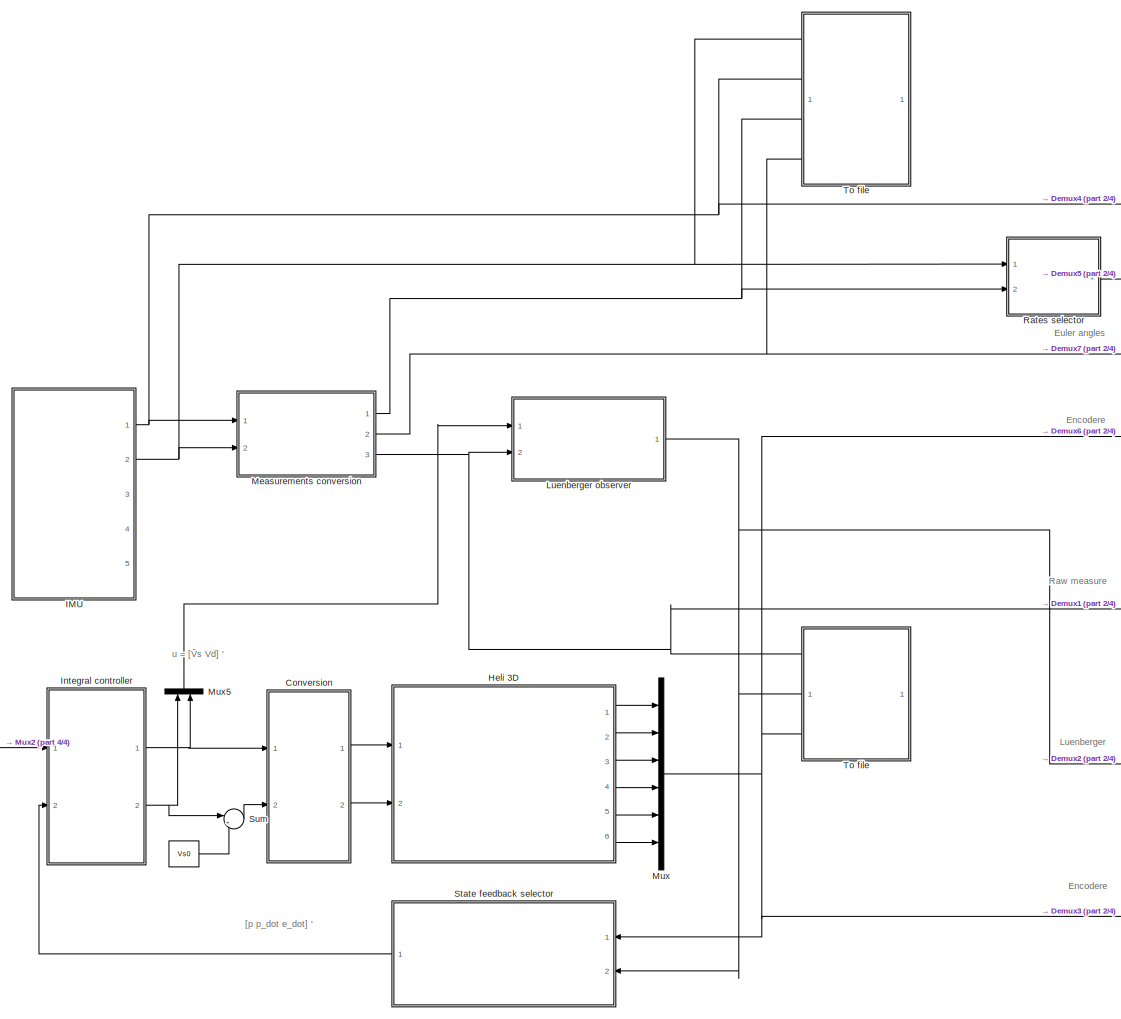
[diagram: root canvas - part 1/4, center side, full height]
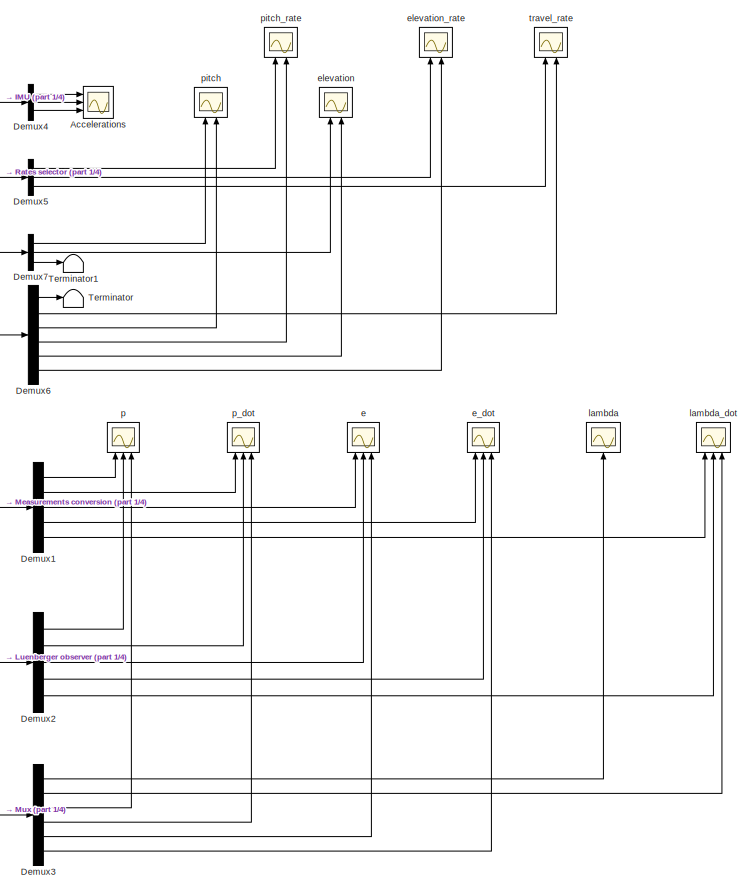
[diagram: root canvas - part 2/4, right side, full height]
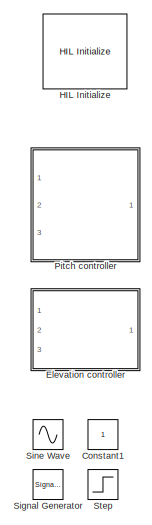
[diagram: root canvas - part 3/4, middle left region]
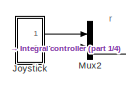
[diagram: root canvas - part 4/4, bottom left region]
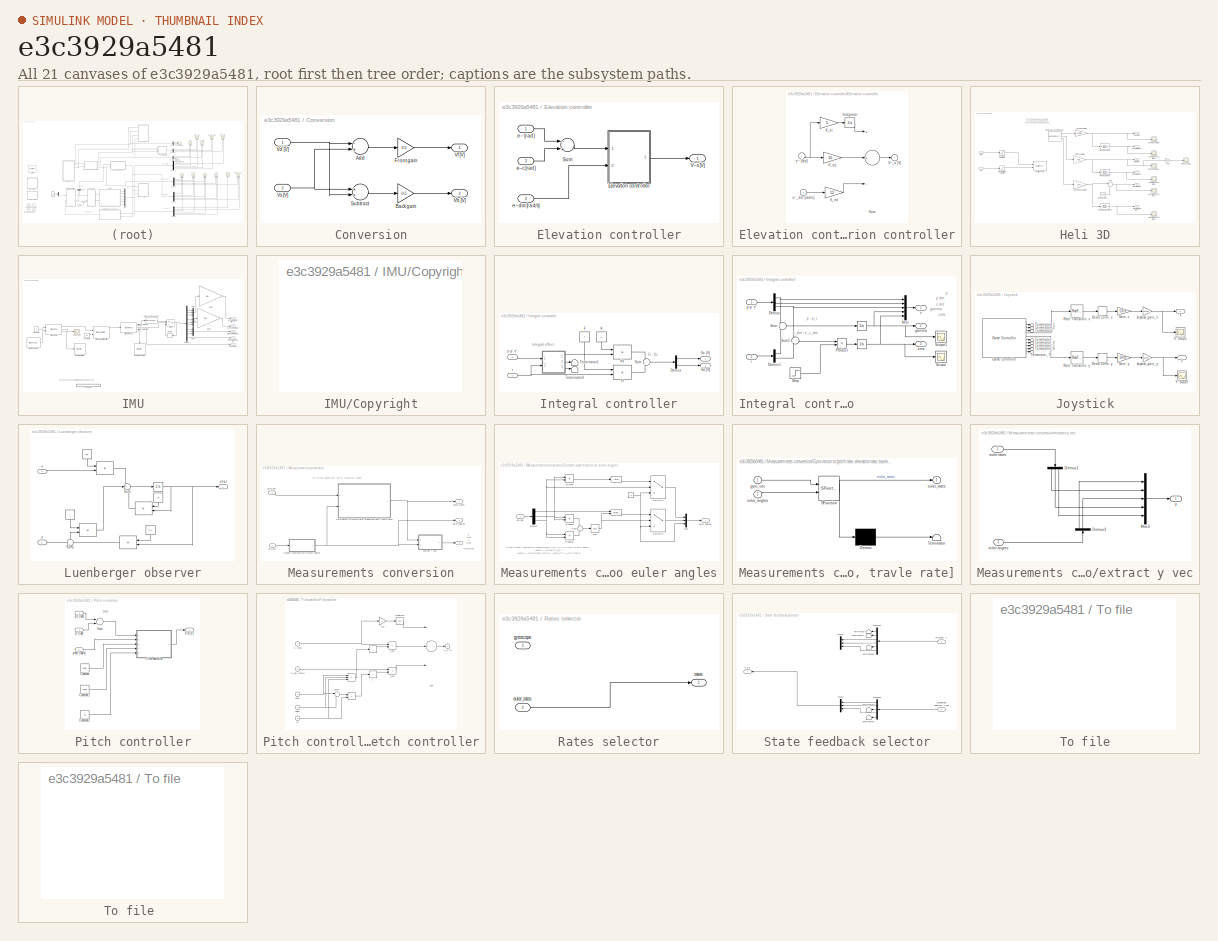
[diagram: thumbnail index - all 21 canvases of the model, root first then tree order]
MODEL slx_e3c3929a5481
KIND model
CONFIG AbsTol = auto
CONFIG EnableMultiTasking = on
CONFIG FixedStep = 0.002
CONFIG MaxStep = auto
CONFIG MinStep = auto
CONFIG PostLoadFcn = qc_set_target_type(getConfigSet(bdroot, 'QUARC Default Target Configuration'));
CONFIG RelTol = 1e-3
CONFIG SampleTimeConstraint = Unconstrained
CONFIG Solver = ode1
CONFIG SolverName = ode1
CONFIG StartTime = 0.0
CONFIG StopTime = inf
BLOCK [Constant]     
  Value = Vs0
BLOCK [ToFile]        
  Filename = x_enc
  Ports = [1]
BLOCK [ToFile]                     
  Filename = eul_rates
  Ports = [1]
BLOCK [ToFile]                                    
  Filename = eul_ang
  Ports = [1]
BLOCK [ToFile]                                     
  Filename = y_vec
  Ports = [1]
BLOCK [ToFile]                                       
  Filename = acc_raw
  Ports = [1]
BLOCK [ToFile]                                                               
  Filename = x_hat_L
  Ports = [1]
BLOCK [ToFile]                                                                    
  Filename = gyro_raw
  Ports = [1]
BLOCK [Scope] Accelerations
  Floating = off
  NumInputPorts = 3
  Ports = [3]
  ScopeSpecificationString = Simulink.scopes.TimeScopeBlockCfg('CurrentConfiguration', extmgr.ConfigurationSet(extmgr.Configuration('Core','General UI',true),extmgr.Configuration('Core','Source UI',true),extmgr.Configuration('Sources','WiredSimulink',true,'DataLoggingVariableName','ScopeData1'),extmgr.Configuration('Visuals','Time Domain',true),extmgr.Configuration('Tools','Plot Navigation',true),extmgr.Configuration('Tools',...<+40ch>
BLOCK [Constant] Constant1
BLOCK [SubSystem] Conversion
  Ports = [2, 2]
  RequestExecContextInheritance = off
BLOCK [Sum] Conversion/Add
  InputSameDT = off
  Inputs = -+
  OutDataTypeStr = Inherit: Inherit via internal rule
  Ports = [2, 1]
  SaturateOnIntegerOverflow = off
BLOCK [Gain] Conversion/Back gain
  Gain = 0.5
  OutDataTypeStr = Inherit: Inherit via internal rule
  ParamDataTypeStr = Inherit: Inherit via internal rule
  SaturateOnIntegerOverflow = off
BLOCK [Gain] Conversion/Front gain
  Gain = 0.5
  OutDataTypeStr = Inherit: Inherit via internal rule
  ParamDataTypeStr = Inherit: Inherit via internal rule
  SaturateOnIntegerOverflow = off
BLOCK [Sum] Conversion/Subtract
  InputSameDT = off
  OutDataTypeStr = Inherit: Inherit via internal rule
  Ports = [2, 1]
  SaturateOnIntegerOverflow = off
BLOCK [Outport] Conversion/Vb [V]
  IconDisplay = Port number
  Port = 2
BLOCK [Inport] Conversion/Vd [V]
  IconDisplay = Port number
BLOCK [Outport] Conversion/Vf [V]
  IconDisplay = Port number
BLOCK [Inport] Conversion/Vs [V]
  IconDisplay = Port number
  Port = 2
BLOCK [Demux] Demux1
  DisplayOption = bar
  Outputs = 5
  Ports = [1, 5]
BLOCK [Demux] Demux2
  DisplayOption = bar
  Outputs = 5
  Ports = [1, 5]
BLOCK [Demux] Demux3
  DisplayOption = bar
  Outputs = 6
  Ports = [1, 6]
BLOCK [Demux] Demux4
  DisplayOption = bar
  Outputs = 3
  Ports = [1, 3]
BLOCK [Demux] Demux5
  DisplayOption = bar
  Outputs = 3
  Ports = [1, 3]
BLOCK [Demux] Demux6
  DisplayOption = bar
  Outputs = 6
  Ports = [1, 6]
BLOCK [Demux] Demux7
  DisplayOption = bar
  Outputs = 3
  Ports = [1, 3]
BLOCK [SubSystem] Elevation controller
  Ports = [3, 1]
  RequestExecContextInheritance = off
BLOCK [SubSystem] Elevation controller/Elevation controller
  Ports = [2, 1]
  RequestExecContextInheritance = off
BLOCK [Integrator] Elevation controller/Elevation controller/Integrator
  LimitOutput = on
  Ports = [1, 1]
BLOCK [Gain] Elevation controller/Elevation controller/K_ed
  Gain = 12
BLOCK [Gain] Elevation controller/Elevation controller/K_ei
  Gain = 5
BLOCK [Gain] Elevation controller/Elevation controller/K_ep
  Gain = 15
BLOCK [Sum] Elevation controller/Elevation controller/Sum
  Inputs = ++-
  Ports = [3, 1]
BLOCK [Outport] Elevation controller/Elevation controller/V~_s [V]
  IconDisplay = Port number
  InitialOutput = 0
BLOCK [Inport] Elevation controller/Elevation controller/e~ [rad]
  IconDisplay = Port number
BLOCK [Inport] Elevation controller/Elevation controller/e~_dot [rad//s]
  IconDisplay = Port number
  Port = 2
BLOCK [Sum] Elevation controller/Sum
  Inputs = -+
  Ports = [2, 1]
BLOCK [Outport] Elevation controller/V~s [V]
  IconDisplay = Port number
  InitialOutput = 0
BLOCK [Inport] Elevation controller/e~ [rad]
  IconDisplay = Port number
BLOCK [Inport] Elevation controller/e~c [rad]
  IconDisplay = Port number
  Port = 3
BLOCK [Inport] Elevation controller/e~dot [rad//s]
  IconDisplay = Port number
  Port = 2
BLOCK [Reference] HIL Initialize  REF=quarc_library/Data Acquisition/Generic/Configuration/HIL Initialize
  AttributesFormatString = %<object_name> (%<board_type>-%<board_number>)
  Ports = []
  Priority = -99
  SourceBlock = quarc_library/Data Acquisition/Generic/Configuration/HIL Initialize
  SourceType = HIL Initialize
  UserDataPersistent = on
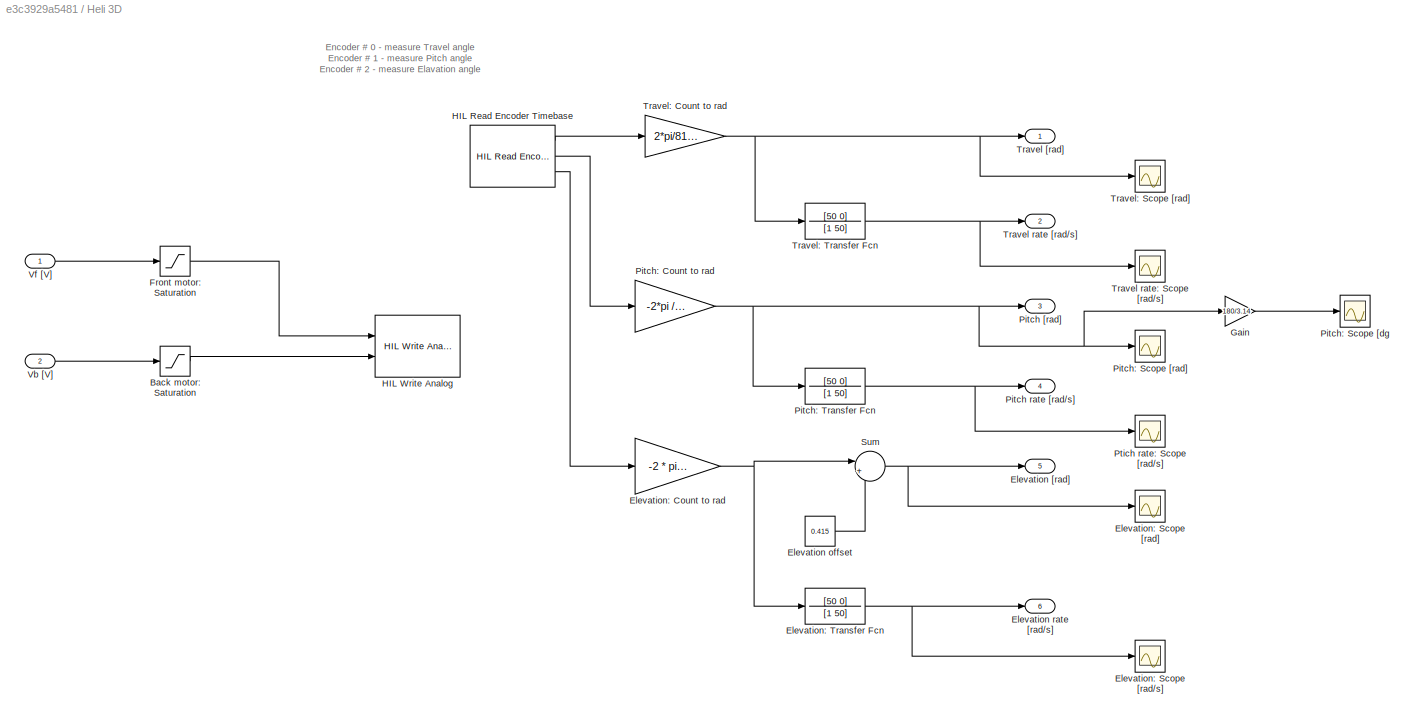
BLOCK [SubSystem] Heli 3D
  Ports = [2, 6]
  RequestExecContextInheritance = off
BLOCK [Saturate] Heli 3D/Back motor: Saturation
  InputPortMap = u0
  LowerLimit = -5
  Ports = [1, 1]
  UpperLimit = 5
BLOCK [Outport] Heli 3D/Elevation [rad]
  IconDisplay = Port number
  Port = 5
BLOCK [Constant] Heli 3D/Elevation offset
  Value = 0.415
BLOCK [Outport] Heli 3D/Elevation rate [rad//s]
  IconDisplay = Port number
  Port = 6
BLOCK [Gain] Heli 3D/Elevation: Count to rad
  Gain = -2 * pi /4096
  OutDataTypeStr = Inherit: Inherit via internal rule
  ParamDataTypeStr = Inherit: Inherit via internal rule
  SaturateOnIntegerOverflow = off
BLOCK [Scope] Heli 3D/Elevation: Scope [rad//s]
  Floating = off
  NumInputPorts = 1
  Ports = [1]
  ScopeSpecificationString = Simulink.scopes.TimeScopeBlockCfg('CurrentConfiguration', extmgr.ConfigurationSet(extmgr.Configuration('Core','General UI',true),extmgr.Configuration('Core','Source UI',true),extmgr.Configuration('Sources','WiredSimulink',true,'DataLoggingVariableName','ScopeData13','DataLoggingSaveFormat','StructureWithTime','DataLoggingLimitDataPoints',true,'DataLoggingDecimation','1','DataLoggingDecimateData',t...<+1676ch>
BLOCK [Scope] Heli 3D/Elevation: Scope [rad]
  Floating = off
  NumInputPorts = 1
  Ports = [1]
  ScopeSpecificationString = Simulink.scopes.TimeScopeBlockCfg('CurrentConfiguration', extmgr.ConfigurationSet(extmgr.Configuration('Core','General UI',true),extmgr.Configuration('Core','Source UI',true),extmgr.Configuration('Sources','WiredSimulink',true,'DataLoggingVariableName','ScopeData12','DataLoggingSaveFormat','StructureWithTime','DataLoggingLimitDataPoints',true,'DataLoggingDecimation','1','DataLoggingDecimateData',t...<+1698ch>
BLOCK [TransferFcn] Heli 3D/Elevation: Transfer Fcn
  Denominator = [1 50]
  Numerator = [50 0]
BLOCK [Saturate] Heli 3D/Front motor: Saturation
  InputPortMap = u0
  LowerLimit = -5
  Ports = [1, 1]
  UpperLimit = 5
BLOCK [Gain] Heli 3D/Gain
  Gain = 180/3.14
  OutDataTypeStr = Inherit: Inherit via internal rule
  ParamDataTypeStr = Inherit: Inherit via internal rule
  SaturateOnIntegerOverflow = off
BLOCK [Reference] Heli 3D/HIL Read Encoder Timebase  REF=quarc_library/Data Acquisition/Generic/Timebases/HIL Read Encoder
Timebase
  AttributesFormatString = (%<object_name>)
  Ports = [0, 3]
  SourceBlock = quarc_library/Data Acquisition/Generic/Timebases/HIL Read Encoder\nTimebase
  SourceType = HIL Read Encoder Timebase
  UserDataPersistent = on
BLOCK [Reference] Heli 3D/HIL Write Analog  REF=quarc_library/Data Acquisition/Generic/Immediate I//O/HIL Write Analog
  AttributesFormatString = (%<object_name>)
  Ports = [2]
  SourceBlock = quarc_library/Data Acquisition/Generic/Immediate I//O/HIL Write Analog
  SourceType = HIL Write Analog
  UserDataPersistent = on
BLOCK [Outport] Heli 3D/Pitch [rad]
  IconDisplay = Port number
  Port = 3
BLOCK [Outport] Heli 3D/Pitch rate [rad//s]
  IconDisplay = Port number
  Port = 4
BLOCK [Gain] Heli 3D/Pitch: Count to rad
  Gain = -2*pi /4096
  OutDataTypeStr = Inherit: Inherit via internal rule
  ParamDataTypeStr = Inherit: Inherit via internal rule
  SaturateOnIntegerOverflow = off
BLOCK [Scope] Heli 3D/Pitch: Scope [dg
  Floating = off
  NumInputPorts = 1
  Ports = [1]
  ScopeSpecificationString = Simulink.scopes.TimeScopeBlockCfg('CurrentConfiguration', extmgr.ConfigurationSet(extmgr.Configuration('Core','General UI',true),extmgr.Configuration('Core','Source UI',true),extmgr.Configuration('Sources','WiredSimulink',true,'DataLoggingVariableName','ScopeData1','DataLoggingSaveFormat','StructureWithTime','DataLoggingLimitDataPoints',true,'DataLoggingDecimation','1','DataLoggingDecimateData',tr...<+1704ch>
BLOCK [Scope] Heli 3D/Pitch: Scope [rad]
  Floating = off
  NumInputPorts = 1
  Ports = [1]
  ScopeSpecificationString = Simulink.scopes.TimeScopeBlockCfg('CurrentConfiguration', extmgr.ConfigurationSet(extmgr.Configuration('Core','General UI',true),extmgr.Configuration('Core','Source UI',true),extmgr.Configuration('Sources','WiredSimulink',true,'DataLoggingVariableName','ScopeData10','DataLoggingSaveFormat','StructureWithTime','DataLoggingLimitDataPoints',true,'DataLoggingDecimation','1','DataLoggingDecimateData',t...<+1711ch>
BLOCK [TransferFcn] Heli 3D/Pitch: Transfer Fcn
  Denominator = [1 50]
  Numerator = [50 0]
BLOCK [Scope] Heli 3D/Ptich rate: Scope [rad//s]
  Floating = off
  NumInputPorts = 1
  Ports = [1]
  ScopeSpecificationString = Simulink.scopes.TimeScopeBlockCfg('CurrentConfiguration', extmgr.ConfigurationSet(extmgr.Configuration('Core','General UI',true),extmgr.Configuration('Core','Source UI',true),extmgr.Configuration('Sources','WiredSimulink',true,'DataLoggingVariableName','ScopeData11','DataLoggingSaveFormat','StructureWithTime','DataLoggingLimitDataPoints',true,'DataLoggingDecimation','1','DataLoggingDecimateData',t...<+1671ch>
BLOCK [Sum] Heli 3D/Sum
  IconShape = round
  InputSameDT = off
  Inputs = |+-
  OutDataTypeStr = Inherit: Inherit via internal rule
  Ports = [2, 1]
  SaturateOnIntegerOverflow = off
BLOCK [Outport] Heli 3D/Travel [rad]
  IconDisplay = Port number
BLOCK [Outport] Heli 3D/Travel rate [rad//s]
  IconDisplay = Port number
  Port = 2
BLOCK [Scope] Heli 3D/Travel rate: Scope [rad//s]
  Floating = off
  NumInputPorts = 1
  Ports = [1]
  ScopeSpecificationString = Simulink.scopes.TimeScopeBlockCfg('CurrentConfiguration', extmgr.ConfigurationSet(extmgr.Configuration('Core','General UI',true),extmgr.Configuration('Core','Source UI',true),extmgr.Configuration('Sources','WiredSimulink',true,'DataLoggingVariableName','ScopeData9','DataLoggingSaveFormat','StructureWithTime','DataLoggingLimitDataPoints',true,'DataLoggingDecimation','1','DataLoggingDecimateData',tr...<+1714ch>
BLOCK [Gain] Heli 3D/Travel: Count to rad
  Gain = 2*pi/8192
  OutDataTypeStr = Inherit: Inherit via internal rule
  ParamDataTypeStr = Inherit: Inherit via internal rule
  SaturateOnIntegerOverflow = off
BLOCK [Scope] Heli 3D/Travel: Scope [rad]
  Floating = off
  NumInputPorts = 1
  Ports = [1]
  ScopeSpecificationString = Simulink.scopes.TimeScopeBlockCfg('CurrentConfiguration', extmgr.ConfigurationSet(extmgr.Configuration('Core','General UI',true),extmgr.Configuration('Core','Source UI',true),extmgr.Configuration('Sources','WiredSimulink',true,'DataLoggingVariableName','ScopeData8','DataLoggingSaveFormat','StructureWithTime','DataLoggingLimitDataPoints',true,'DataLoggingDecimation','1','DataLoggingDecimateData',tr...<+1714ch>
BLOCK [TransferFcn] Heli 3D/Travel: Transfer Fcn
  Denominator = [1 50]
  Numerator = [50 0]
BLOCK [Inport] Heli 3D/Vb [V]
  IconDisplay = Port number
  Port = 2
BLOCK [Inport] Heli 3D/Vf [V]
  IconDisplay = Port number
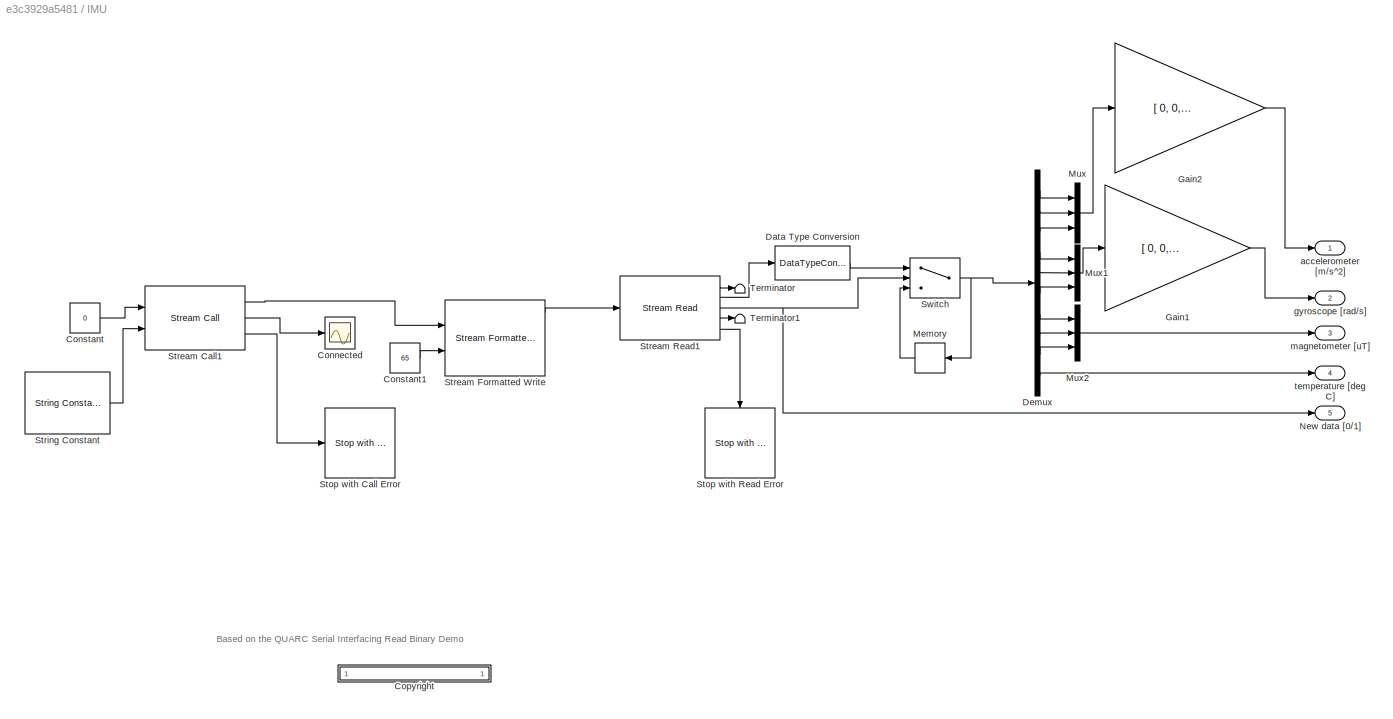
BLOCK [SubSystem] IMU
  Ports = [0, 5]
  RequestExecContextInheritance = off
BLOCK [Scope] IMU/Connected
  Floating = off
  NumInputPorts = 1
  Ports = [1]
  ScopeSpecificationString = Simulink.scopes.TimeScopeBlockCfg('CurrentConfiguration', extmgr.ConfigurationSet(extmgr.Configuration('Core','General UI',true),extmgr.Configuration('Core','Source UI',true),extmgr.Configuration('Sources','WiredSimulink',true,'DataLoggingSaveFormat','StructureWithTime','DataLoggingLimitDataPoints',true,'DataLoggingDecimation','1','DataLoggingDecimateData',true,'DataLoggingVariableName','ScopeData...<+909ch>
BLOCK [Constant] IMU/Constant
  Value = 0
BLOCK [Constant] IMU/Constant1
  Value = 65
BLOCK [SubSystem] IMU/<copyright redacted>
  OpenFcn = web('http://www.quanser.com/');
  Permissions = NoReadOrWrite
  PermitHierarchicalResolution = None
  Ports = []
  RequestExecContextInheritance = off
BLOCK [DataTypeConversion] IMU/Data Type Conversion
  OutDataTypeStr = double
  RndMeth = Floor
  SaturateOnIntegerOverflow = off
BLOCK [Demux] IMU/Demux
  DisplayOption = bar
  Outputs = 10
  Ports = [1, 10]
BLOCK [Gain] IMU/Gain1
  Gain = [ 0, 0, 1; 0, 1, 0; -1, 0, 0]
  Multiplication = Matrix(K*u) (u vector)
  OutDataTypeStr = Inherit: Inherit via internal rule
  ParamDataTypeStr = Inherit: Inherit via internal rule
  SaturateOnIntegerOverflow = off
BLOCK [Gain] IMU/Gain2
  Gain = [ 0, 0, 1; 0, 1, 0; -1, 0, 0]
  Multiplication = Matrix(K*u) (u vector)
  OutDataTypeStr = Inherit: Inherit via internal rule
  ParamDataTypeStr = Inherit: Inherit via internal rule
  SaturateOnIntegerOverflow = off
BLOCK [Memory] IMU/Memory
  InitialCondition = [0 0 0 0 0 0 0 0 0 0]
BLOCK [Mux] IMU/Mux
  DisplayOption = bar
  Inputs = 3
  Ports = [3, 1]
BLOCK [Mux] IMU/Mux1
  DisplayOption = bar
  Inputs = 3
  Ports = [3, 1]
BLOCK [Mux] IMU/Mux2
  DisplayOption = bar
  Inputs = 3
  Ports = [3, 1]
BLOCK [Outport] IMU/New data [0//1]
  IconDisplay = Port number
  Port = 5
BLOCK [Reference] IMU/Stop with Call Error  REF=quarc_library/Sinks/Error Handling/Stop with Error
  Ports = [1]
  SourceBlock = quarc_library/Sinks/Error Handling/Stop with Error
  SourceType = Stop with Error
BLOCK [Reference] IMU/Stop with Read Error  REF=quarc_library/Sinks/Error Handling/Stop with Error
  Ports = [1]
  SourceBlock = quarc_library/Sinks/Error Handling/Stop with Error
  SourceType = Stop with Error
BLOCK [Reference] IMU/Stream Call1  REF=quarc_library/Communications/Intermediate/Stream Call
  Ports = [2, 3]
  SourceBlock = quarc_library/Communications/Intermediate/Stream Call
  SourceType = Stream Call
BLOCK [Reference] IMU/Stream Formatted Write  REF=quarc_library/Communications/Intermediate/Stream Formatted
Write
  Ports = [2, 5]
  SourceBlock = quarc_library/Communications/Intermediate/Stream Formatted\nWrite
  SourceType = Stream Formatted Write
BLOCK [Reference] IMU/Stream Read1  REF=quarc_library/Communications/Intermediate/Stream Read
  Ports = [1, 5]
  SourceBlock = quarc_library/Communications/Intermediate/Stream Read
  SourceType = Stream Read
BLOCK [Reference] IMU/String Constant  REF=quarc_library/Strings/String Constant
  AttributesFormatString = "serial://IMU:10?baud=115200,word=8,parity=none,stop=1"
  Ports = [0, 1]
  SourceBlock = quarc_library/Strings/String Constant
  SourceType = String Constant
BLOCK [Switch] IMU/Switch
  Criteria = u2 > Threshold
  InputSameDT = off
  SaturateOnIntegerOverflow = off
BLOCK [Terminator] IMU/Terminator
BLOCK [Terminator] IMU/Terminator1
BLOCK [Outport] IMU/accelerometer [m//s^2]
  IconDisplay = Port number
BLOCK [Outport] IMU/gyroscope [rad//s]
  IconDisplay = Port number
  Port = 2
BLOCK [Outport] IMU/magnetometer [uT]
  IconDisplay = Port number
  Port = 3
BLOCK [Outport] IMU/temperature [deg C]
  IconDisplay = Port number
  Port = 4
BLOCK [SubSystem] Integral controller
  Ports = [2, 2]
  RequestExecContextInheritance = off
BLOCK [SubSystem] Integral controller/                         
  Ports = [2, 3]
  RequestExecContextInheritance = off
BLOCK [Integrator] Integral controller/                         /  
  Ports = [1, 1]
BLOCK [Integrator] Integral controller/                         /   
  Ports = [1, 1]
BLOCK [Demux] Integral controller/                         /Demux
  DisplayOption = bar
  Outputs = 3
  Ports = [1, 3]
BLOCK [Demux] Integral controller/                         /Demux1
  DisplayOption = bar
  Outputs = 2
  Ports = [1, 2]
BLOCK [Mux] Integral controller/                         /Mux
  DisplayOption = bar
  Inputs = 5
  Ports = [5, 1]
BLOCK [Product] Integral controller/                         /Product
  InputSameDT = off
  OutDataTypeStr = Inherit: Inherit via internal rule
  Ports = [2, 1]
  RndMeth = Floor
  SaturateOnIntegerOverflow = off
BLOCK [Scope] Integral controller/                         /Scope
  Floating = off
  NumInputPorts = 1
  Ports = [1]
  ScopeSpecificationString = Simulink.scopes.TimeScopeBlockCfg('CurrentConfiguration', extmgr.ConfigurationSet(extmgr.Configuration('Core','General UI',true),extmgr.Configuration('Core','Source UI',true),extmgr.Configuration('Sources','WiredSimulink',true,'DataLoggingVariableName','ScopeData1'),extmgr.Configuration('Visuals','Time Domain',true,'SerializedDisplays',{struct('MinYLimReal','-0.47093','MaxYLimReal','0.0813','YLabe...<+1391ch>
BLOCK [Scope] Integral controller/                         /Scope1
  Floating = off
  NumInputPorts = 1
  Ports = [1]
  ScopeSpecificationString = Simulink.scopes.TimeScopeBlockCfg('CurrentConfiguration', extmgr.ConfigurationSet(extmgr.Configuration('Core','General UI',true),extmgr.Configuration('Core','Source UI',true),extmgr.Configuration('Sources','WiredSimulink',true,'DataLoggingVariableName','ScopeData1'),extmgr.Configuration('Visuals','Time Domain',true,'SerializedDisplays',{struct('MinYLimReal','-0.47093','MaxYLimReal','0.0813','YLabe...<+1391ch>
BLOCK [Step] Integral controller/                         /Step
  SampleTime = 0
  Time = 5
BLOCK [Sum] Integral controller/                         /Sum
  IconShape = round
  InputSameDT = off
  Inputs = +|-
  OutDataTypeStr = Inherit: Inherit via internal rule
  Ports = [2, 1]
  SaturateOnIntegerOverflow = off
BLOCK [Sum] Integral controller/                         /Sum1
  IconShape = round
  InputSameDT = off
  Inputs = +|-
  OutDataTypeStr = Inherit: Inherit via internal rule
  Ports = [2, 1]
  SaturateOnIntegerOverflow = off
BLOCK [Outport] Integral controller/                         /gamma
  IconDisplay = Port number
  Port = 2
BLOCK [Inport] Integral controller/                         /p p' e'
  IconDisplay = Port number
BLOCK [Inport] Integral controller/                         /r
  IconDisplay = Port number
  Port = 2
BLOCK [Outport] Integral controller/                         /x
  IconDisplay = Port number
BLOCK [Outport] Integral controller/                         /zeta
  IconDisplay = Port number
  Port = 3
BLOCK [Demux] Integral controller/Demux
  DisplayOption = bar
  Outputs = 2
  Ports = [1, 2]
BLOCK [Constant] Integral controller/F
  Value = F
  VectorParams1D = off
BLOCK [Product] Integral controller/Fr
  InputSameDT = off
  Multiplication = Matrix(*)
  OutDataTypeStr = Inherit: Inherit via internal rule
  Ports = [2, 1]
  RndMeth = Floor
  SaturateOnIntegerOverflow = off
BLOCK [Constant] Integral controller/K
  Value = K
  VectorParams1D = off
BLOCK [Product] Integral controller/Kx
  InputSameDT = off
  Multiplication = Matrix(*)
  Ports = [2, 1]
  RndMeth = Nearest
  SaturateOnIntegerOverflow = off
BLOCK [Sum] Integral controller/Sum
  IconShape = round
  InputSameDT = off
  Inputs = -|+
  OutDataTypeStr = Inherit: Inherit via internal rule
  Ports = [2, 1]
  SaturateOnIntegerOverflow = off
BLOCK [Terminator] Integral controller/Terminator1
BLOCK [Terminator] Integral controller/Terminator2
BLOCK [Inport] Integral controller/p p' e'
  IconDisplay = Port number
  Port = 2
BLOCK [Inport] Integral controller/r
  IconDisplay = Port number
BLOCK [Outport] Integral controller/Ṽd [V]
  IconDisplay = Port number
  InitialOutput = 0
BLOCK [Outport] Integral controller/Ṽs [V]
  IconDisplay = Port number
  InitialOutput = 0
  Port = 2
BLOCK [SubSystem] Joystick
  Ports = [0, 2]
  RequestExecContextInheritance = off
BLOCK [DeadZone] Joystick/Dead Zone: x
  LowerValue = -0.1
  UpperValue = 0.1
BLOCK [DeadZone] Joystick/Dead Zone: y
  LowerValue = -0.1
  UpperValue = 0.1
BLOCK [Gain] Joystick/Gain: x
  Gain = 10/9
  OutDataTypeStr = Inherit: Inherit via internal rule
  ParamDataTypeStr = Inherit: Inherit via internal rule
  SaturateOnIntegerOverflow = off
BLOCK [Gain] Joystick/Gain: y
  Gain = 10/9
  OutDataTypeStr = Inherit: Inherit via internal rule
  ParamDataTypeStr = Inherit: Inherit via internal rule
  SaturateOnIntegerOverflow = off
BLOCK [Reference] Joystick/Game Controller  REF=quarc_library/Devices/Peripherals/Target/Game Controller
  Ports = [0, 10]
  SourceBlock = quarc_library/Devices/Peripherals/Target/Game Controller
  SourceType = Game Controller
BLOCK [Gain] Joystick/Joystick_gain_x
  Gain = Joystick_gain_x
  OutDataTypeStr = Inherit: Inherit via internal rule
  ParamDataTypeStr = Inherit: Inherit via internal rule
  SaturateOnIntegerOverflow = off
BLOCK [Gain] Joystick/Joystick_gain_y
  Gain = Joystick_gain_y
  OutDataTypeStr = Inherit: Inherit via internal rule
  ParamDataTypeStr = Inherit: Inherit via internal rule
  SaturateOnIntegerOverflow = off
BLOCK [RateTransition] Joystick/Rate Transition: x
BLOCK [RateTransition] Joystick/Rate Transition: y
BLOCK [Terminator] Joystick/Terminator
BLOCK [Terminator] Joystick/Terminator1
BLOCK [Terminator] Joystick/Terminator_1
BLOCK [Terminator] Joystick/Terminator_2
BLOCK [Terminator] Joystick/Terminator_4
BLOCK [Terminator] Joystick/Terminator_5
BLOCK [Terminator] Joystick/Terminator_6
BLOCK [Terminator] Joystick/Terminator_7
BLOCK [Outport] Joystick/X
  IconDisplay = Port number
BLOCK [Scope] Joystick/X: Scope
  Floating = off
  NumInputPorts = 1
  Ports = [1]
  ScopeSpecificationString = Simulink.scopes.TimeScopeBlockCfg('CurrentConfiguration', extmgr.ConfigurationSet(extmgr.Configuration('Core','General UI',true),extmgr.Configuration('Core','Source UI',true),extmgr.Configuration('Sources','WiredSimulink',true,'DataLoggingVariableName','ScopeData7','DataLoggingSaveFormat','StructureWithTime','DataLoggingLimitDataPoints',true,'DataLoggingDecimation','1','DataLoggingDecimateData',tr...<+1628ch>
BLOCK [Outport] Joystick/Y
  IconDisplay = Port number
  Port = 2
BLOCK [Scope] Joystick/Y: Scope
  Floating = off
  NumInputPorts = 1
  Ports = [1]
  ScopeSpecificationString = Simulink.scopes.TimeScopeBlockCfg('CurrentConfiguration', extmgr.ConfigurationSet(extmgr.Configuration('Core','General UI',true),extmgr.Configuration('Core','Source UI',true),extmgr.Configuration('Sources','WiredSimulink',true,'DataLoggingVariableName','ScopeData5','DataLoggingSaveFormat','StructureWithTime','DataLoggingLimitDataPoints',true,'DataLoggingDecimation','1','DataLoggingDecimateData',tr...<+931ch>
BLOCK [SubSystem] Luenberger observer
  Ports = [2, 1]
  RequestExecContextInheritance = off
BLOCK [Constant] Luenberger observer/ 
  Value = L
BLOCK [Constant] Luenberger observer/   
  Value = Ao
BLOCK [Constant] Luenberger observer/     
  Value = Co
BLOCK [Product] Luenberger observer/      
  InputSameDT = off
  Multiplication = Matrix(*)
  OutDataTypeStr = Inherit: Inherit via internal rule
  Ports = [2, 1]
  RndMeth = Floor
  SaturateOnIntegerOverflow = off
BLOCK [Product] Luenberger observer/                
  InputSameDT = off
  Multiplication = Matrix(*)
  OutDataTypeStr = Inherit: Inherit via internal rule
  Ports = [2, 1]
  RndMeth = Floor
  SaturateOnIntegerOverflow = off
BLOCK [Product] Luenberger observer/                       
  InputSameDT = off
  Multiplication = Matrix(*)
  OutDataTypeStr = Inherit: Inherit via internal rule
  Ports = [2, 1]
  RndMeth = Floor
  SaturateOnIntegerOverflow = off
BLOCK [Integrator] Luenberger observer/                        
  Ports = [1, 1]
BLOCK [Product] Luenberger observer/                            
  InputSameDT = off
  Multiplication = Matrix(*)
  OutDataTypeStr = Inherit: Inherit via internal rule
  Ports = [2, 1]
  RndMeth = Floor
  SaturateOnIntegerOverflow = off
BLOCK [Constant] Luenberger observer/                                      
  Value = Bo
BLOCK [Sum] Luenberger observer/Sum
  IconShape = round
  InputSameDT = off
  Inputs = +++
  OutDataTypeStr = Inherit: Inherit via internal rule
  Ports = [3, 1]
  SaturateOnIntegerOverflow = off
BLOCK [Sum] Luenberger observer/Sum1
  IconShape = round
  InputSameDT = off
  Inputs = +-
  OutDataTypeStr = Inherit: Inherit via internal rule
  Ports = [2, 1]
  SaturateOnIntegerOverflow = off
BLOCK [Inport] Luenberger observer/u
  IconDisplay = Port number
BLOCK [Outport] Luenberger observer/x hat
  IconDisplay = Port number
  InitialOutput = 0
BLOCK [Inport] Luenberger observer/y
  IconDisplay = Port number
  Port = 2
BLOCK [SubSystem] Measurements conversion
  Ports = [2, 3]
  RequestExecContextInheritance = off
BLOCK [SubSystem] Measurements conversion/Convert acceleration to euler angles
  Ports = [1, 1]
  RequestExecContextInheritance = off
BLOCK [Trigonometry] Measurements conversion/Convert acceleration to euler angles/ 
  Operator = atan
  Ports = [1, 1]
BLOCK [Trigonometry] Measurements conversion/Convert acceleration to euler angles/                     
  Operator = atan2
  Ports = [2, 1]
BLOCK [Constant] Measurements conversion/Convert acceleration to euler angles/                         
  Value = 0
BLOCK [Demux] Measurements conversion/Convert acceleration to euler angles/Demux
  DisplayOption = bar
  Outputs = 3
  Ports = [1, 3]
BLOCK [Product] Measurements conversion/Convert acceleration to euler angles/Divide
  InputSameDT = off
  Inputs = */
  OutDataTypeStr = Inherit: Inherit via internal rule
  Ports = [2, 1]
  RndMeth = Floor
  SaturateOnIntegerOverflow = off
BLOCK [Mux] Measurements conversion/Convert acceleration to euler angles/Mux
  DisplayOption = bar
  Inputs = 3
  Ports = [3, 1]
BLOCK [Product] Measurements conversion/Convert acceleration to euler angles/Product
  InputSameDT = off
  OutDataTypeStr = Inherit: Inherit via internal rule
  Ports = [2, 1]
  RndMeth = Floor
  SaturateOnIntegerOverflow = off
BLOCK [Product] Measurements conversion/Convert acceleration to euler angles/Product1
  InputSameDT = off
  OutDataTypeStr = Inherit: Inherit via internal rule
  Ports = [2, 1]
  RndMeth = Floor
  SaturateOnIntegerOverflow = off
BLOCK [Sqrt] Measurements conversion/Convert acceleration to euler angles/Sqrt
BLOCK [Sum] Measurements conversion/Convert acceleration to euler angles/Sum
  IconShape = round
  InputSameDT = off
  Inputs = +|+
  OutDataTypeStr = Inherit: Inherit via internal rule
  Ports = [2, 1]
  SaturateOnIntegerOverflow = off
BLOCK [Switch] Measurements conversion/Convert acceleration to euler angles/Switch e
  Criteria = u2 ~= 0
  InputSameDT = off
  SaturateOnIntegerOverflow = off
BLOCK [Switch] Measurements conversion/Convert acceleration to euler angles/Switch p
  Criteria = u2 ~= 0
  InputSameDT = off
  SaturateOnIntegerOverflow = off
BLOCK [Inport] Measurements conversion/Convert acceleration to euler angles/acc_vec
  IconDisplay = Port number
BLOCK [Outport] Measurements conversion/Convert acceleration to euler angles/euler_angles
  IconDisplay = Port number
BLOCK [SubSystem] Measurements conversion/Gyro vector to [pitch rate, elevation rate, travle rate]
  ErrorFcn = Stateflow.Translate.translate
  PermitHierarchicalResolution = ExplicitOnly
  Ports = [2, 1]
  RequestExecContextInheritance = off
  SFBlockType = MATLAB Function
  TreatAsAtomicUnit = on
BLOCK [Demux] Measurements conversion/Gyro vector to [pitch rate, elevation rate, travle rate]/ Demux 
  Outputs = 1
  Ports = [1, 1]
BLOCK [S-Function] Measurements conversion/Gyro vector to [pitch rate, elevation rate, travle rate]/ SFunction 
  EnableBusSupport = off
  FunctionName = sf_sfun
  PortCounts = [2 2]
  Ports = [2, 2]
  SFcnIsStateOwnerBlock = off
  SFunctionDeploymentMode = off
  Tag = Stateflow S-Function 2
BLOCK [Terminator] Measurements conversion/Gyro vector to [pitch rate, elevation rate, travle rate]/ Terminator 
BLOCK [Inport] Measurements conversion/Gyro vector to [pitch rate, elevation rate, travle rate]/euler_angles
  IconDisplay = Port number
  Port = 2
BLOCK [Outport] Measurements conversion/Gyro vector to [pitch rate, elevation rate, travle rate]/euler_rates
  IconDisplay = Port number
BLOCK [Inport] Measurements conversion/Gyro vector to [pitch rate, elevation rate, travle rate]/gyro_vec
  IconDisplay = Port number
BLOCK [Inport] Measurements conversion/acc_vec
  IconDisplay = Port number
BLOCK [Outport] Measurements conversion/euler_angles
  IconDisplay = Port number
  Port = 2
BLOCK [Outport] Measurements conversion/euler_rates
  IconDisplay = Port number
BLOCK [SubSystem] Measurements conversion/extract y vec
  Ports = [2, 1]
  RequestExecContextInheritance = off
BLOCK [Demux] Measurements conversion/extract y vec/Demux1
  DisplayOption = bar
  Outputs = 3
  Ports = [1, 3]
BLOCK [Demux] Measurements conversion/extract y vec/Demux3
  DisplayOption = bar
  Outputs = 3
  Ports = [1, 3]
BLOCK [Mux] Measurements conversion/extract y vec/Mux3
  DisplayOption = bar
  Inputs = 5
  Ports = [5, 1]
BLOCK [Inport] Measurements conversion/extract y vec/euler angles
  IconDisplay = Port number
  Port = 2
BLOCK [Inport] Measurements conversion/extract y vec/euler rates
  IconDisplay = Port number
BLOCK [Outport] Measurements conversion/extract y vec/y
  IconDisplay = Port number
BLOCK [Inport] Measurements conversion/gyro_vec
  IconDisplay = Port number
  Port = 2
BLOCK [Outport] Measurements conversion/y
  IconDisplay = Port number
  Port = 3
BLOCK [Mux] Mux
  DisplayOption = bar
  Inputs = 6
  Ports = [6, 1]
BLOCK [Mux] Mux2
  DisplayOption = bar
  Inputs = 2
  Ports = [2, 1]
BLOCK [Mux] Mux5
  DisplayOption = bar
  Inputs = 2
  Ports = [2, 1]
BLOCK [SubSystem] Pitch controller
  Ports = [3, 1]
  RequestExecContextInheritance = off
BLOCK [Constant] Pitch controller/Constant
  Value = pole1
BLOCK [Constant] Pitch controller/Constant1
  Value = pole2
BLOCK [Constant] Pitch controller/Constant2
  Value = K1
BLOCK [SubSystem] Pitch controller/Pitch controller
  Ports = [5, 1]
  RequestExecContextInheritance = off
BLOCK [Product] Pitch controller/Pitch controller/ 
  InputSameDT = off
  Inputs = */
  OutDataTypeStr = Inherit: Inherit via internal rule
  Ports = [2, 1]
  RndMeth = Floor
  SaturateOnIntegerOverflow = off
BLOCK [Product] Pitch controller/Pitch controller/  
  InputSameDT = off
  Inputs = **/
  OutDataTypeStr = Inherit: Inherit via internal rule
  Ports = [3, 1]
  RndMeth = Floor
  SaturateOnIntegerOverflow = off
BLOCK [ComplexToRealImag] Pitch controller/Pitch controller/   
  Ports = [1, 2]
BLOCK [ComplexToRealImag] Pitch controller/Pitch controller/   1
  Ports = [1, 2]
BLOCK [Integrator] Pitch controller/Pitch controller/Integrator
  LimitOutput = on
  Ports = [1, 1]
BLOCK [Inport] Pitch controller/Pitch controller/K1
  IconDisplay = Port number
  Port = 5
BLOCK [Product] Pitch controller/Pitch controller/K_pd
  InputSameDT = off
  OutDataTypeStr = Inherit: Inherit via internal rule
  Ports = [2, 1]
  RndMeth = Floor
  SaturateOnIntegerOverflow = off
BLOCK [Gain] Pitch controller/Pitch controller/K_pi
  Gain = 0
BLOCK [Product] Pitch controller/Pitch controller/K_pp
  InputSameDT = off
  OutDataTypeStr = Inherit: Inherit via internal rule
  Ports = [2, 1]
  RndMeth = Floor
  SaturateOnIntegerOverflow = off
BLOCK [Sum] Pitch controller/Pitch controller/Sum
  Inputs = ++-
  Ports = [3, 1]
BLOCK [Sum] Pitch controller/Pitch controller/Sum1
  IconShape = round
  InputSameDT = off
  Inputs = |--
  OutDataTypeStr = Inherit: Inherit via internal rule
  Ports = [2, 1]
  SaturateOnIntegerOverflow = off
BLOCK [Outport] Pitch controller/Pitch controller/V~_d [V]
  IconDisplay = Port number
  InitialOutput = 0
BLOCK [Inport] Pitch controller/Pitch controller/pole1
  IconDisplay = Port number
  Port = 3
BLOCK [Inport] Pitch controller/Pitch controller/pole2
  IconDisplay = Port number
  Port = 4
BLOCK [Inport] Pitch controller/Pitch controller/p~ [rad]
  IconDisplay = Port number
BLOCK [Inport] Pitch controller/Pitch controller/p~_dot [rad//s]
  IconDisplay = Port number
  Port = 2
BLOCK [Sum] Pitch controller/Sum
  Inputs = +-
  Ports = [2, 1]
BLOCK [Outport] Pitch controller/V~d [V]
  IconDisplay = Port number
  InitialOutput = 0
BLOCK [Inport] Pitch controller/p~ [rad]
  IconDisplay = Port number
  Port = 2
BLOCK [Inport] Pitch controller/p~c [rad]
  IconDisplay = Port number
BLOCK [Inport] Pitch controller/p~dot [rad//s]
  IconDisplay = Port number
  Port = 3
BLOCK [SubSystem] Rates selector
  Ports = [2, 1]
  RequestExecContextInheritance = off
BLOCK [Inport] Rates selector/euler_rates
  IconDisplay = Port number
  Port = 2
BLOCK [Inport] Rates selector/gyroscope
  IconDisplay = Port number
BLOCK [Outport] Rates selector/rates
  IconDisplay = Port number
  InitialOutput = 0
BLOCK [SignalGenerator] Signal Generator
  Amplitude = 0.2
  Frequency = 0.5
  Ports = [0, 1]
  Units = rad/sec
  WaveForm = square
BLOCK [Sin] Sine Wave
  Amplitude = 0.2
  Frequency = 0.5
  Ports = [0, 1]
  SampleTime = 0
BLOCK [SubSystem] State feedback selector
  Ports = [2, 1]
  RequestExecContextInheritance = off
BLOCK [Demux] State feedback selector/Demux1
  DisplayOption = bar
  Outputs = 6
  Ports = [1, 6]
BLOCK [Demux] State feedback selector/Demux2
  DisplayOption = bar
  Outputs = 5
  Ports = [1, 5]
BLOCK [Inport] State feedback selector/Encoder:    x
  IconDisplay = Port number
BLOCK [Inport] State feedback selector/Luenberger observer:   x_hat
  IconDisplay = Port number
  Port = 2
BLOCK [Mux] State feedback selector/Mux2
  DisplayOption = bar
  Inputs = 3
  Ports = [3, 1]
BLOCK [Mux] State feedback selector/Mux3
  DisplayOption = bar
  Inputs = 3
  Ports = [3, 1]
BLOCK [Terminator] State feedback selector/Terminator
BLOCK [Terminator] State feedback selector/Terminator1
BLOCK [Terminator] State feedback selector/Terminator2
BLOCK [Terminator] State feedback selector/Terminator6
BLOCK [Terminator] State feedback selector/Terminator7
BLOCK [Outport] State feedback selector/p p' e'
  IconDisplay = Port number
BLOCK [Step] Step
  After = 0.3
  SampleTime = 0
  Time = 10
BLOCK [Sum] Sum
  IconShape = round
  InputSameDT = off
  Inputs = |++
  OutDataTypeStr = Inherit: Inherit via internal rule
  Ports = [2, 1]
  SaturateOnIntegerOverflow = off
BLOCK [Terminator] Terminator
BLOCK [Terminator] Terminator1
BLOCK [SubSystem] To file
  Ports = []
  RequestExecContextInheritance = off
BLOCK [SubSystem] To file 
  Ports = []
  RequestExecContextInheritance = off
BLOCK [Scope] e
  Floating = off
  NumInputPorts = 3
  Ports = [3]
  ScopeSpecificationString = Simulink.scopes.TimeScopeBlockCfg('CurrentConfiguration', extmgr.ConfigurationSet(extmgr.Configuration('Core','General UI',true),extmgr.Configuration('Core','Source UI',true),extmgr.Configuration('Sources','WiredSimulink',true,'DataLoggingVariableName','ScopeData4'),extmgr.Configuration('Visuals','Time Domain',true,'SerializedDisplays',{struct('MinYLimReal','-0.31607','MaxYLimReal','0.70651','YLab...<+1461ch>
BLOCK [Scope] e_dot
  Floating = off
  NumInputPorts = 3
  Ports = [3]
  ScopeSpecificationString = Simulink.scopes.TimeScopeBlockCfg('CurrentConfiguration', extmgr.ConfigurationSet(extmgr.Configuration('Core','General UI',true),extmgr.Configuration('Core','Source UI',true),extmgr.Configuration('Sources','WiredSimulink',true,'DataLoggingVariableName','ScopeData5'),extmgr.Configuration('Visuals','Time Domain',true,'SerializedDisplays',{struct('MinYLimReal','-0.69065','MaxYLimReal','0.78541','YLab...<+1461ch>
BLOCK [Scope] elevation
  Floating = off
  NumInputPorts = 2
  Ports = [2]
  ScopeSpecificationString = Simulink.scopes.TimeScopeBlockCfg('CurrentConfiguration', extmgr.ConfigurationSet(extmgr.Configuration('Core','General UI',true),extmgr.Configuration('Core','Source UI',true),extmgr.Configuration('Sources','WiredSimulink',true,'DataLoggingVariableName','ScopeData6'),extmgr.Configuration('Visuals','Time Domain',true,'SerializedDisplays',{struct('MinYLimReal','-29.56736','MaxYLimReal','14.20539','YL...<+1437ch>
BLOCK [Scope] elevation_rate
  Floating = off
  NumInputPorts = 2
  Ports = [2]
  ScopeSpecificationString = Simulink.scopes.TimeScopeBlockCfg('CurrentConfiguration', extmgr.ConfigurationSet(extmgr.Configuration('Core','General UI',true),extmgr.Configuration('Core','Source UI',true),extmgr.Configuration('Sources','WiredSimulink',true,'DataLoggingVariableName','ScopeData3'),extmgr.Configuration('Visuals','Time Domain',true,'SerializedDisplays',{struct('MinYLimReal','-2.32487','MaxYLimReal','3.09182','YLab...<+1431ch>
BLOCK [Scope] lambda
  Floating = off
  NumInputPorts = 1
  Ports = [1]
  ScopeSpecificationString = Simulink.scopes.TimeScopeBlockCfg('CurrentConfiguration', extmgr.ConfigurationSet(extmgr.Configuration('Core','General UI',true),extmgr.Configuration('Core','Source UI',true),extmgr.Configuration('Sources','WiredSimulink',true,'DataLoggingVariableName','ScopeData6'),extmgr.Configuration('Visuals','Time Domain',true,'SerializedDisplays',{struct('MinYLimReal','-16.35672','MaxYLimReal','110.71765','Y...<+1417ch>
BLOCK [Scope] lambda_dot
  Floating = off
  NumInputPorts = 3
  Ports = [3]
  ScopeSpecificationString = Simulink.scopes.TimeScopeBlockCfg('CurrentConfiguration', extmgr.ConfigurationSet(extmgr.Configuration('Core','General UI',true),extmgr.Configuration('Core','Source UI',true),extmgr.Configuration('Sources','WiredSimulink',true,'DataLoggingVariableName','ScopeData7'),extmgr.Configuration('Visuals','Time Domain',true,'SerializedDisplays',{struct('MinYLimReal','-50.97407','MaxYLimReal','456.91354','Y...<+1471ch>
BLOCK [Scope] p
  Floating = off
  NumInputPorts = 3
  Ports = [3]
  ScopeSpecificationString = Simulink.scopes.TimeScopeBlockCfg('CurrentConfiguration', extmgr.ConfigurationSet(extmgr.Configuration('Core','General UI',true),extmgr.Configuration('Core','Source UI',true),extmgr.Configuration('Sources','WiredSimulink',true,'DataLoggingVariableName','ScopeData2'),extmgr.Configuration('Visuals','Time Domain',true,'SerializedDisplays',{struct('MinYLimReal','-0.19172','MaxYLimReal','0.0688','YLabe...<+1405ch>
BLOCK [Scope] p_dot
  Floating = off
  NumInputPorts = 3
  Ports = [3]
  ScopeSpecificationString = Simulink.scopes.TimeScopeBlockCfg('CurrentConfiguration', extmgr.ConfigurationSet(extmgr.Configuration('Core','General UI',true),extmgr.Configuration('Core','Source UI',true),extmgr.Configuration('Sources','WiredSimulink',true,'DataLoggingVariableName','ScopeData3'),extmgr.Configuration('Visuals','Time Domain',true,'SerializedDisplays',{struct('MinYLimReal','-1.05956','MaxYLimReal','1.15613','YLab...<+1432ch>
BLOCK [Scope] pitch
  Floating = off
  NumInputPorts = 2
  Ports = [2]
  ScopeSpecificationString = Simulink.scopes.TimeScopeBlockCfg('CurrentConfiguration', extmgr.ConfigurationSet(extmgr.Configuration('Core','General UI',true),extmgr.Configuration('Core','Source UI',true),extmgr.Configuration('Sources','WiredSimulink',true,'DataLoggingVariableName','ScopeData2'),extmgr.Configuration('Visuals','Time Domain',true,'SerializedDisplays',{struct('MinYLimReal','-29.56736','MaxYLimReal','14.20539','YL...<+1437ch>
BLOCK [Scope] pitch_rate
  Floating = off
  NumInputPorts = 2
  Ports = [2]
  ScopeSpecificationString = Simulink.scopes.TimeScopeBlockCfg('CurrentConfiguration', extmgr.ConfigurationSet(extmgr.Configuration('Core','General UI',true),extmgr.Configuration('Core','Source UI',true),extmgr.Configuration('Sources','WiredSimulink',true,'DataLoggingVariableName','ScopeData4'),extmgr.Configuration('Visuals','Time Domain',true,'SerializedDisplays',{struct('MinYLimReal','-29.56736','MaxYLimReal','14.20539','YL...<+1437ch>
BLOCK [Scope] travel_rate
  Floating = off
  NumInputPorts = 2
  Ports = [2]
  ScopeSpecificationString = Simulink.scopes.TimeScopeBlockCfg('CurrentConfiguration', extmgr.ConfigurationSet(extmgr.Configuration('Core','General UI',true),extmgr.Configuration('Core','Source UI',true),extmgr.Configuration('Sources','WiredSimulink',true,'DataLoggingVariableName','ScopeData5'),extmgr.Configuration('Visuals','Time Domain',true,'SerializedDisplays',{struct('MinYLimReal','-0.83187','MaxYLimReal','0.84012','YLab...<+1432ch>
ANNOTATION (root): r
ANNOTATION (root): u = [Ṽs Vd] '
ANNOTATION (root): [p p_dot e_dot] '
ANNOTATION (root): Encodere
ANNOTATION (root): Euler angles
ANNOTATION (root): Luenberger
ANNOTATION (root): Raw measure
ANNOTATION Heli 3D: Encoder # 0 - measure Travel angle Encoder # 1 - measure Pitch angle Encoder # 2 - measure Elavation angle
ANNOTATION IMU: Based on the QUARC Serial Interfacing Read Binary Demo
ANNOTATION Integral controller: Fr - Kx
ANNOTATION Integral controller: Integral effect
ANNOTATION Integral controller/                         : e dot
ANNOTATION Integral controller/                         : e_dot - e_c_dot
ANNOTATION Integral controller/                         : gamma
ANNOTATION Integral controller/                         : p
ANNOTATION Integral controller/                         : p - p_c
ANNOTATION Integral controller/                         : p dot
ANNOTATION Integral controller/                         : zeta
ANNOTATION Measurements conversion: p p_dot e e_dot lambda_dot
ANNOTATION Measurements conversion: Nb: Euler angles are: [pitch, elevation, travel]
ANNOTATION Measurements conversion/Convert acceleration to euler angles: $\text{Convert acceleration measurements }(a_x, a_y, a_z)\text{ to euler angles }(p, e, \lambda): \\ \quad p = \arctan(a_y/a_z) \\ \quad e = \text{arctan2}\left(a_x, \sqrt{a_y^2 + a_z^2}\right)$
ANNOTATION Pitch controller: p-p_c
LINE     :1 -> Sum:2
LINE Conversion/Add:1 -> Conversion/Front gain:1
LINE Conversion/Back gain:1 -> Conversion/Vb [V]:1
LINE Conversion/Front gain:1 -> Conversion/Vf [V]:1
LINE Conversion/Subtract:1 -> Conversion/Back gain:1
NET Conversion/Vd [V]:1 -> Conversion/Add:1, Conversion/Subtract:2
NET Conversion/Vs [V]:1 -> Conversion/Add:2, Conversion/Subtract:1
LINE Conversion:1 -> Heli 3D:1
LINE Conversion:2 -> Heli 3D:2
LINE Demux1:1 -> p:1
LINE Demux1:2 -> p_dot:1
LINE Demux1:3 -> e:1
LINE Demux1:4 -> e_dot:1
LINE Demux1:5 -> lambda_dot:1
LINE Demux2:1 -> p:2
LINE Demux2:2 -> p_dot:2
LINE Demux2:3 -> e:2
LINE Demux2:4 -> e_dot:2
LINE Demux2:5 -> lambda_dot:2
LINE Demux3:1 -> lambda:1
LINE Demux3:2 -> lambda_dot:3
LINE Demux3:3 -> p:3
LINE Demux3:4 -> p_dot:3
LINE Demux3:5 -> e:3
LINE Demux3:6 -> e_dot:3
LINE Demux4:1 -> Accelerations:1
LINE Demux4:2 -> Accelerations:2
LINE Demux4:3 -> Accelerations:3
LINE Demux5:1 -> pitch_rate:1
LINE Demux5:2 -> elevation_rate:1
LINE Demux5:3 -> travel_rate:1
LINE Demux6:1 -> Terminator:1
LINE Demux6:2 -> travel_rate:2
LINE Demux6:3 -> pitch:2
LINE Demux6:4 -> pitch_rate:2
LINE Demux6:5 -> elevation:2
LINE Demux6:6 -> elevation_rate:2
LINE Demux7:1 -> pitch:1
LINE Demux7:2 -> elevation:1
LINE Demux7:3 -> Terminator1:1
LINE Elevation controller/Elevation controller/Integrator:1 -> Elevation controller/Elevation controller/Sum:1
LINE Elevation controller/Elevation controller/K_ed:1 -> Elevation controller/Elevation controller/Sum:3
LINE Elevation controller/Elevation controller/K_ei:1 -> Elevation controller/Elevation controller/Integrator:1
LINE Elevation controller/Elevation controller/K_ep:1 -> Elevation controller/Elevation controller/Sum:2
LINE Elevation controller/Elevation controller/Sum:1 -> Elevation controller/Elevation controller/V~_s [V]:1
NET Elevation controller/Elevation controller/e~ [rad]:1 -> Elevation controller/Elevation controller/K_ei:1, Elevation controller/Elevation controller/K_ep:1
LINE Elevation controller/Elevation controller/e~_dot [rad//s]:1 -> Elevation controller/Elevation controller/K_ed:1
LINE Elevation controller/Elevation controller:1 -> Elevation controller/V~s [V]:1
LINE Elevation controller/Sum:1 -> Elevation controller/Elevation controller:1
LINE Elevation controller/e~ [rad]:1 -> Elevation controller/Sum:1
LINE Elevation controller/e~c [rad]:1 -> Elevation controller/Sum:2
LINE Elevation controller/e~dot [rad//s]:1 -> Elevation controller/Elevation controller:2
LINE Heli 3D/Back motor: Saturation:1 -> Heli 3D/HIL Write Analog:2
LINE Heli 3D/Elevation offset:1 -> Heli 3D/Sum:2
NET Heli 3D/Elevation: Count to rad:1 -> Heli 3D/Elevation: Transfer Fcn:1, Heli 3D/Sum:1
NET Heli 3D/Elevation: Transfer Fcn:1 -> Heli 3D/Elevation rate [rad//s]:1, Heli 3D/Elevation: Scope [rad//s]:1
LINE Heli 3D/Front motor: Saturation:1 -> Heli 3D/HIL Write Analog:1
LINE Heli 3D/Gain:1 -> Heli 3D/Pitch: Scope [dg:1
LINE Heli 3D/HIL Read Encoder Timebase:1 -> Heli 3D/Travel: Count to rad:1
LINE Heli 3D/HIL Read Encoder Timebase:2 -> Heli 3D/Pitch: Count to rad:1
LINE Heli 3D/HIL Read Encoder Timebase:3 -> Heli 3D/Elevation: Count to rad:1
NET Heli 3D/Pitch: Count to rad:1 -> Heli 3D/Gain:1, Heli 3D/Pitch [rad]:1, Heli 3D/Pitch: Scope [rad]:1, Heli 3D/Pitch: Transfer Fcn:1
NET Heli 3D/Pitch: Transfer Fcn:1 -> Heli 3D/Pitch rate [rad//s]:1, Heli 3D/Ptich rate: Scope [rad//s]:1
NET Heli 3D/Sum:1 -> Heli 3D/Elevation [rad]:1, Heli 3D/Elevation: Scope [rad]:1
NET Heli 3D/Travel: Count to rad:1 -> Heli 3D/Travel [rad]:1, Heli 3D/Travel: Scope [rad]:1, Heli 3D/Travel: Transfer Fcn:1
NET Heli 3D/Travel: Transfer Fcn:1 -> Heli 3D/Travel rate [rad//s]:1, Heli 3D/Travel rate: Scope [rad//s]:1
LINE Heli 3D/Vb [V]:1 -> Heli 3D/Back motor: Saturation:1
LINE Heli 3D/Vf [V]:1 -> Heli 3D/Front motor: Saturation:1
LINE Heli 3D:1 -> Mux:1
LINE Heli 3D:2 -> Mux:2
LINE Heli 3D:3 -> Mux:3
LINE Heli 3D:4 -> Mux:4
LINE Heli 3D:5 -> Mux:5
LINE Heli 3D:6 -> Mux:6
LINE IMU/Constant1:1 -> IMU/Stream Formatted Write:2
LINE IMU/Constant:1 -> IMU/Stream Call1:1
LINE IMU/Data Type Conversion:1 -> IMU/Switch:1
LINE IMU/Demux:1 -> IMU/Mux:1
LINE IMU/Demux:10 -> IMU/temperature [deg C]:1
LINE IMU/Demux:2 -> IMU/Mux:2
LINE IMU/Demux:3 -> IMU/Mux:3
LINE IMU/Demux:4 -> IMU/Mux1:1
LINE IMU/Demux:5 -> IMU/Mux1:2
LINE IMU/Demux:6 -> IMU/Mux1:3
LINE IMU/Demux:7 -> IMU/Mux2:1
LINE IMU/Demux:8 -> IMU/Mux2:2
LINE IMU/Demux:9 -> IMU/Mux2:3
LINE IMU/Gain1:1 -> IMU/gyroscope [rad//s]:1
LINE IMU/Gain2:1 -> IMU/accelerometer [m//s^2]:1
LINE IMU/Memory:1 -> IMU/Switch:3
LINE IMU/Mux1:1 -> IMU/Gain1:1
LINE IMU/Mux2:1 -> IMU/magnetometer [uT]:1
LINE IMU/Mux:1 -> IMU/Gain2:1
LINE IMU/Stream Call1:1 -> IMU/Stream Formatted Write:1
LINE IMU/Stream Call1:2 -> IMU/Connected:1
LINE IMU/Stream Call1:3 -> IMU/Stop with Call Error:1
LINE IMU/Stream Formatted Write:1 -> IMU/Stream Read1:1
LINE IMU/Stream Read1:1 -> IMU/Terminator:1
LINE IMU/Stream Read1:2 -> IMU/Data Type Conversion:1
NET IMU/Stream Read1:3 -> IMU/New data [0//1]:1, IMU/Switch:2
LINE IMU/Stream Read1:4 -> IMU/Terminator1:1
LINE IMU/Stream Read1:5 -> IMU/Stop with Read Error:1
LINE IMU/String Constant:1 -> IMU/Stream Call1:2
NET IMU/Switch:1 -> IMU/Demux:1, IMU/Memory:1
NET IMU:1 ->                                       :1, Demux4:1, Measurements conversion:1
NET IMU:2 ->                                                                    :1, Measurements conversion:2, Rates selector:1
NET Integral controller/                         /   :1 -> Integral controller/                         /Mux:5, Integral controller/                         /Scope:1, Integral controller/                         /zeta:1
NET Integral controller/                         /  :1 -> Integral controller/                         /Mux:4, Integral controller/                         /Scope1:1, Integral controller/                         /gamma:1
LINE Integral controller/                         /Demux1:1 -> Integral controller/                         /Sum:2
LINE Integral controller/                         /Demux1:2 -> Integral controller/                         /Sum1:2
NET Integral controller/                         /Demux:1 -> Integral controller/                         /Mux:1, Integral controller/                         /Sum:1
LINE Integral controller/                         /Demux:2 -> Integral controller/                         /Mux:2
NET Integral controller/                         /Demux:3 -> Integral controller/                         /Mux:3, Integral controller/                         /Sum1:1
LINE Integral controller/                         /Mux:1 -> Integral controller/                         /x:1
LINE Integral controller/                         /Product:1 -> Integral controller/                         /   :1
LINE Integral controller/                         /Step:1 -> Integral controller/                         /Product:2
LINE Integral controller/                         /Sum1:1 -> Integral controller/                         /Product:1
LINE Integral controller/                         /Sum:1 -> Integral controller/                         /  :1
LINE Integral controller/                         /p p' e':1 -> Integral controller/                         /Demux:1
LINE Integral controller/                         /r:1 -> Integral controller/                         /Demux1:1
LINE Integral controller/                         :1 -> Integral controller/Kx:2
LINE Integral controller/                         :2 -> Integral controller/Terminator1:1
LINE Integral controller/                         :3 -> Integral controller/Terminator2:1
LINE Integral controller/Demux:1 -> Integral controller/Ṽs [V]:1
LINE Integral controller/Demux:2 -> Integral controller/Ṽd [V]:1
LINE Integral controller/F:1 -> Integral controller/Fr:1
LINE Integral controller/Fr:1 -> Integral controller/Sum:2
LINE Integral controller/K:1 -> Integral controller/Kx:1
LINE Integral controller/Kx:1 -> Integral controller/Sum:1
LINE Integral controller/Sum:1 -> Integral controller/Demux:1
LINE Integral controller/p p' e':1 -> Integral controller/                         :1
NET Integral controller/r:1 -> Integral controller/                         :2, Integral controller/Fr:2
NET Integral controller:1 -> Conversion:1, Mux5:2
NET Integral controller:2 -> Mux5:1, Sum:1
LINE Joystick/Dead Zone: x:1 -> Joystick/Gain: x:1
LINE Joystick/Dead Zone: y:1 -> Joystick/Gain: y:1
LINE Joystick/Gain: x:1 -> Joystick/Joystick_gain_x:1
LINE Joystick/Gain: y:1 -> Joystick/Joystick_gain_y:1
LINE Joystick/Game Controller:1 -> Joystick/Terminator_1:1
LINE Joystick/Game Controller:10 -> Joystick/Terminator_7:1
LINE Joystick/Game Controller:2 -> Joystick/Terminator_2:1
LINE Joystick/Game Controller:3 -> Joystick/Terminator1:1
LINE Joystick/Game Controller:4 -> Joystick/Rate Transition: x:1
LINE Joystick/Game Controller:5 -> Joystick/Rate Transition: y:1
LINE Joystick/Game Controller:6 -> Joystick/Terminator:1
LINE Joystick/Game Controller:7 -> Joystick/Terminator_4:1
LINE Joystick/Game Controller:8 -> Joystick/Terminator_5:1
LINE Joystick/Game Controller:9 -> Joystick/Terminator_6:1
NET Joystick/Joystick_gain_x:1 -> Joystick/X: Scope:1, Joystick/X:1
NET Joystick/Joystick_gain_y:1 -> Joystick/Y: Scope:1, Joystick/Y:1
LINE Joystick/Rate Transition: x:1 -> Joystick/Dead Zone: x:1
LINE Joystick/Rate Transition: y:1 -> Joystick/Dead Zone: y:1
LINE Joystick:1 -> Mux2:1
LINE Joystick:2 -> Mux2:2
LINE Luenberger observer/                                      :1 -> Luenberger observer/                       :1
LINE Luenberger observer/                            :1 -> Luenberger observer/Sum:3
NET Luenberger observer/                        :1 -> Luenberger observer/                            :2, Luenberger observer/      :2, Luenberger observer/x hat:1
LINE Luenberger observer/                       :1 -> Luenberger observer/Sum:1
LINE Luenberger observer/                :1 -> Luenberger observer/Sum:2
LINE Luenberger observer/      :1 -> Luenberger observer/Sum1:2
LINE Luenberger observer/     :1 -> Luenberger observer/      :1
LINE Luenberger observer/   :1 -> Luenberger observer/                            :1
LINE Luenberger observer/ :1 -> Luenberger observer/                :1
LINE Luenberger observer/Sum1:1 -> Luenberger observer/                :2
LINE Luenberger observer/Sum:1 -> Luenberger observer/                        :1
LINE Luenberger observer/u:1 -> Luenberger observer/                       :2
LINE Luenberger observer/y:1 -> Luenberger observer/Sum1:1
NET Luenberger observer:1 ->                                                               :1, Demux2:1, State feedback selector:2
NET Measurements conversion/Convert acceleration to euler angles/                         :1 -> Measurements conversion/Convert acceleration to euler angles/Mux:3, Measurements conversion/Convert acceleration to euler angles/Switch e:3, Measurements conversion/Convert acceleration to euler angles/Switch p:3
LINE Measurements conversion/Convert acceleration to euler angles/                     :1 -> Measurements conversion/Convert acceleration to euler angles/Switch e:1
LINE Measurements conversion/Convert acceleration to euler angles/ :1 -> Measurements conversion/Convert acceleration to euler angles/Switch p:1
LINE Measurements conversion/Convert acceleration to euler angles/Demux:1 -> Measurements conversion/Convert acceleration to euler angles/                     :1
NET Measurements conversion/Convert acceleration to euler angles/Demux:2 -> Measurements conversion/Convert acceleration to euler angles/Divide:1, Measurements conversion/Convert acceleration to euler angles/Product:1, Measurements conversion/Convert acceleration to euler angles/Product:2
NET Measurements conversion/Convert acceleration to euler angles/Demux:3 -> Measurements conversion/Convert acceleration to euler angles/Divide:2, Measurements conversion/Convert acceleration to euler angles/Product1:1, Measurements conversion/Convert acceleration to euler angles/Product1:2, Measurements conversion/Convert acceleration to euler angles/Switch p:2
LINE Measurements conversion/Convert acceleration to euler angles/Divide:1 -> Measurements conversion/Convert acceleration to euler angles/ :1
LINE Measurements conversion/Convert acceleration to euler angles/Mux:1 -> Measurements conversion/Convert acceleration to euler angles/euler_angles:1
LINE Measurements conversion/Convert acceleration to euler angles/Product1:1 -> Measurements conversion/Convert acceleration to euler angles/Sum:2
LINE Measurements conversion/Convert acceleration to euler angles/Product:1 -> Measurements conversion/Convert acceleration to euler angles/Sum:1
NET Measurements conversion/Convert acceleration to euler angles/Sqrt:1 -> Measurements conversion/Convert acceleration to euler angles/                     :2, Measurements conversion/Convert acceleration to euler angles/Switch e:2
LINE Measurements conversion/Convert acceleration to euler angles/Sum:1 -> Measurements conversion/Convert acceleration to euler angles/Sqrt:1
LINE Measurements conversion/Convert acceleration to euler angles/Switch e:1 -> Measurements conversion/Convert acceleration to euler angles/Mux:2
LINE Measurements conversion/Convert acceleration to euler angles/Switch p:1 -> Measurements conversion/Convert acceleration to euler angles/Mux:1
LINE Measurements conversion/Convert acceleration to euler angles/acc_vec:1 -> Measurements conversion/Convert acceleration to euler angles/Demux:1
NET Measurements conversion/Convert acceleration to euler angles:1 -> Measurements conversion/Gyro vector to [pitch rate, elevation rate, travle rate]:2, Measurements conversion/euler_angles:1, Measurements conversion/extract y vec:2
NET Measurements conversion/Gyro vector to [pitch rate, elevation rate, travle rate]:1 -> Measurements conversion/euler_rates:1, Measurements conversion/extract y vec:1
LINE Measurements conversion/acc_vec:1 -> Measurements conversion/Convert acceleration to euler angles:1
LINE Measurements conversion/extract y vec/Demux1:1 -> Measurements conversion/extract y vec/Mux3:2
LINE Measurements conversion/extract y vec/Demux1:2 -> Measurements conversion/extract y vec/Mux3:4
LINE Measurements conversion/extract y vec/Demux1:3 -> Measurements conversion/extract y vec/Mux3:5
LINE Measurements conversion/extract y vec/Demux3:1 -> Measurements conversion/extract y vec/Mux3:1
LINE Measurements conversion/extract y vec/Demux3:2 -> Measurements conversion/extract y vec/Mux3:3
LINE Measurements conversion/extract y vec/Mux3:1 -> Measurements conversion/extract y vec/y:1
LINE Measurements conversion/extract y vec/euler angles:1 -> Measurements conversion/extract y vec/Demux3:1
LINE Measurements conversion/extract y vec/euler rates:1 -> Measurements conversion/extract y vec/Demux1:1
LINE Measurements conversion/extract y vec:1 -> Measurements conversion/y:1
LINE Measurements conversion/gyro_vec:1 -> Measurements conversion/Gyro vector to [pitch rate, elevation rate, travle rate]:1
NET Measurements conversion:1 ->                     :1, Rates selector:2
NET Measurements conversion:2 ->                                    :1, Demux7:1
NET Measurements conversion:3 ->                                     :1, Demux1:1, Luenberger observer:2
LINE Mux2:1 -> Integral controller:1
LINE Mux5:1 -> Luenberger observer:1
NET Mux:1 ->        :1, Demux3:1, Demux6:1, State feedback selector:1
LINE Pitch controller/Constant1:1 -> Pitch controller/Pitch controller:4
LINE Pitch controller/Constant2:1 -> Pitch controller/Pitch controller:5
LINE Pitch controller/Constant:1 -> Pitch controller/Pitch controller:3
LINE Pitch controller/Pitch controller/   1:1 -> Pitch controller/Pitch controller/K_pd:2
LINE Pitch controller/Pitch controller/   :1 -> Pitch controller/Pitch controller/K_pp:2
LINE Pitch controller/Pitch controller/  :1 -> Pitch controller/Pitch controller/   :1
LINE Pitch controller/Pitch controller/ :1 -> Pitch controller/Pitch controller/   1:1
LINE Pitch controller/Pitch controller/Integrator:1 -> Pitch controller/Pitch controller/Sum:1
NET Pitch controller/Pitch controller/K1:1 -> Pitch controller/Pitch controller/  :3, Pitch controller/Pitch controller/ :2
LINE Pitch controller/Pitch controller/K_pd:1 -> Pitch controller/Pitch controller/Sum:3
LINE Pitch controller/Pitch controller/K_pi:1 -> Pitch controller/Pitch controller/Integrator:1
LINE Pitch controller/Pitch controller/K_pp:1 -> Pitch controller/Pitch controller/Sum:2
LINE Pitch controller/Pitch controller/Sum1:1 -> Pitch controller/Pitch controller/ :1
LINE Pitch controller/Pitch controller/Sum:1 -> Pitch controller/Pitch controller/V~_d [V]:1
NET Pitch controller/Pitch controller/pole1:1 -> Pitch controller/Pitch controller/  :1, Pitch controller/Pitch controller/Sum1:1
NET Pitch controller/Pitch controller/pole2:1 -> Pitch controller/Pitch controller/  :2, Pitch controller/Pitch controller/Sum1:2
NET Pitch controller/Pitch controller/p~ [rad]:1 -> Pitch controller/Pitch controller/K_pi:1, Pitch controller/Pitch controller/K_pp:1
LINE Pitch controller/Pitch controller/p~_dot [rad//s]:1 -> Pitch controller/Pitch controller/K_pd:1
LINE Pitch controller/Pitch controller:1 -> Pitch controller/V~d [V]:1
LINE Pitch controller/Sum:1 -> Pitch controller/Pitch controller:1
LINE Pitch controller/p~ [rad]:1 -> Pitch controller/Sum:2
LINE Pitch controller/p~c [rad]:1 -> Pitch controller/Sum:1
LINE Pitch controller/p~dot [rad//s]:1 -> Pitch controller/Pitch controller:2
LINE Rates selector/euler_rates:1 -> Rates selector/rates:1
LINE Rates selector:1 -> Demux5:1
LINE State feedback selector/Demux1:1 -> State feedback selector/Terminator:1
LINE State feedback selector/Demux1:2 -> State feedback selector/Terminator1:1
LINE State feedback selector/Demux1:3 -> State feedback selector/Mux2:1
LINE State feedback selector/Demux1:4 -> State feedback selector/Mux2:2
LINE State feedback selector/Demux1:5 -> State feedback selector/Terminator2:1
LINE State feedback selector/Demux1:6 -> State feedback selector/Mux2:3
LINE State feedback selector/Demux2:1 -> State feedback selector/Mux3:1
LINE State feedback selector/Demux2:2 -> State feedback selector/Mux3:2
LINE State feedback selector/Demux2:3 -> State feedback selector/Terminator6:1
LINE State feedback selector/Demux2:4 -> State feedback selector/Mux3:3
LINE State feedback selector/Demux2:5 -> State feedback selector/Terminator7:1
LINE State feedback selector/Encoder:    x:1 -> State feedback selector/Demux1:1
LINE State feedback selector/Luenberger observer:   x_hat:1 -> State feedback selector/Demux2:1
LINE State feedback selector/Mux3:1 -> State feedback selector/p p' e':1
LINE State feedback selector:1 -> Integral controller:2
LINE Sum:1 -> Conversion:2
note: NET lines group one-source signal fan-out (src -> all destinations, sorted); 1:1 wires keep LINE
CHART Measurements conversion/Gyro vector to [pitch rate, elevation rate, travle rate] states=1 transitions=1
  STATE_LABEL 'eML_blk_kernel()'
  STATE_LABEL 'SCRIPT:\nfunction euler_rates = gyro_vec_to_euler_rates(gyro_vec,euler_angles)\n%#codegen\n    phi = euler_angles(1);\n    theta = euler_angles(2);\n    %psi = euler_angles(3);\n\n\n    T = [1, sin(phi)*tan(theta), cos(phi)*tan(theta);\n         0, cos(phi),            -sin(phi);\n         0, sin(phi)/cos(theta), cos(phi)/cos(theta)]; \neuler_rates = T*gyro_vec;'
